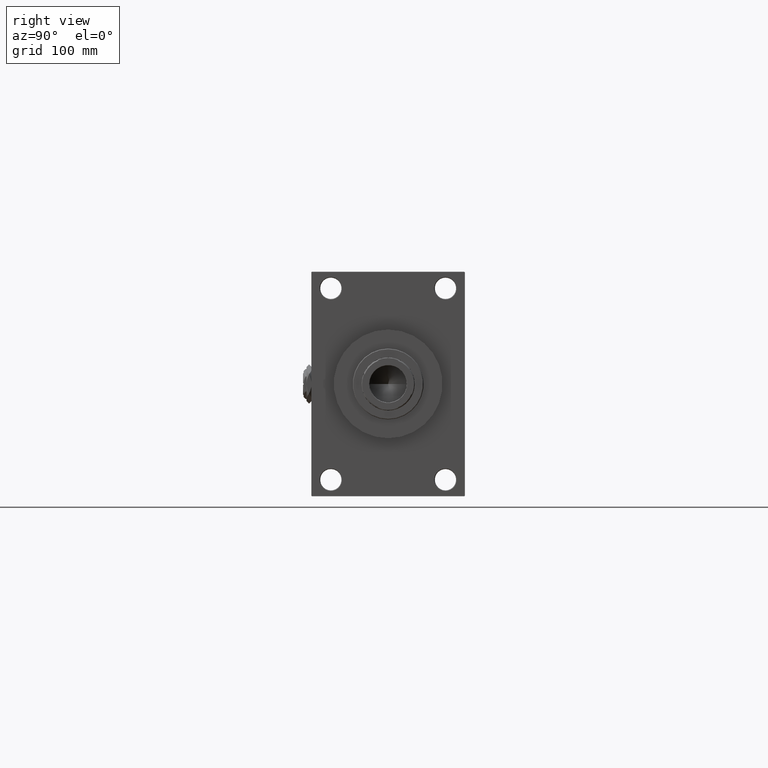
[diagram: clean part render]
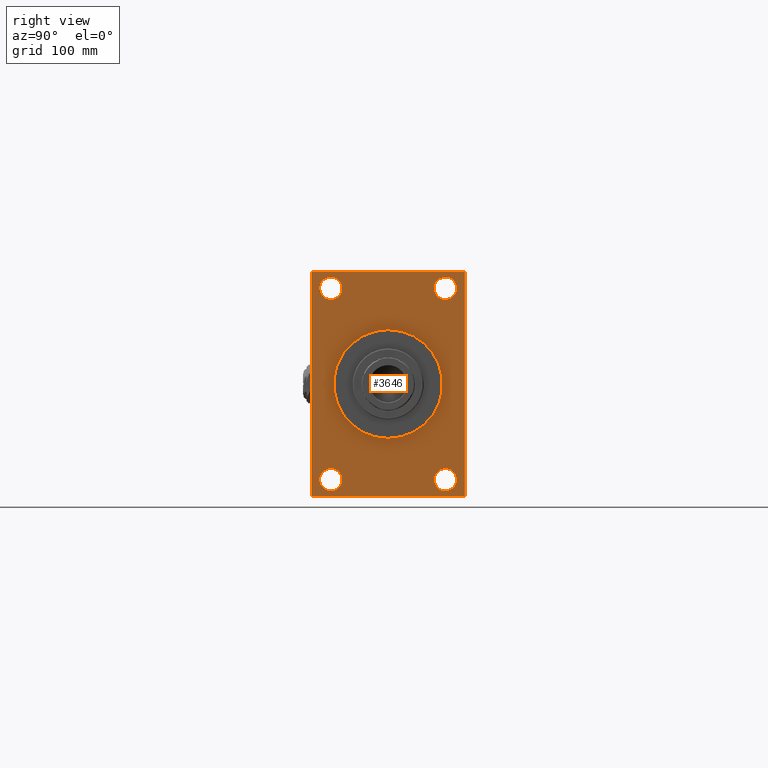
[diagram: same view with one face highlighted and labeled with its STEP entity id]
A machine part, right view. The second image highlights one B-rep face of the part: STEP entity #3646.
In plain terms, the highlighted planar face has unit normal (-1, 0, 0).
Its self-contained STEP definition (entity closure, byte-faithful):
#86 = CARTESIAN_POINT ( 'NONE',  ( 496.0000000000000000, -48.49999999999999289, -81.00000000000001421 ) ) ;
#265 = DIRECTION ( 'NONE',  ( -1.000000000000000000, 0.000000000000000000, -0.000000000000000000 ) ) ;
#358 = EDGE_CURVE ( 'NONE', #20938, #42780, #1046, .T. ) ;
#542 = LINE ( 'NONE', #22946, #36838 ) ;
#622 = CARTESIAN_POINT ( 'NONE',  ( 496.0000000000000000, -64.50000000000007105, -95.00000000000002842 ) ) ;
#705 = EDGE_CURVE ( 'NONE', #12452, #16959, #6179, .T. ) ;
#763 = EDGE_CURVE ( 'NONE', #16959, #30782, #34116, .T. ) ;
#1046 = CIRCLE ( 'NONE', #5063, 9.499999999999896971 ) ;
#1360 = DIRECTION ( 'NONE',  ( 0.000000000000000000, 0.7071067811865474617, -0.7071067811865474617 ) ) ;
#1659 = CARTESIAN_POINT ( 'NONE',  ( 496.0000000000000000, 64.99999999999997158, 94.99999999999997158 ) ) ;
#1685 = FACE_BOUND ( 'NONE', #29223, .T. ) ;
#2212 = CARTESIAN_POINT ( 'NONE',  ( 496.0000000000000000, -48.49999999999999289, -81.00000000000001421 ) ) ;
#2254 = VERTEX_POINT ( 'NONE', #24703 ) ;
#2329 = VERTEX_POINT ( 'NONE', #41585 ) ;
#2345 = CARTESIAN_POINT ( 'NONE',  ( 496.0000000000000000, 48.50000000000000711, -81.00000000000001421 ) ) ;
#2368 = VERTEX_POINT ( 'NONE', #11106 ) ;
#2667 = EDGE_CURVE ( 'NONE', #28242, #2329, #49799, .T. ) ;
#3153 = AXIS2_PLACEMENT_3D ( 'NONE', #4471, #34461, #42523 ) ;
#3229 = EDGE_CURVE ( 'NONE', #37912, #2368, #13231, .T. ) ;
#3646 = ADVANCED_FACE ( 'NONE', ( #1685, #16550, #12774, #9491, #39714, #28364 ), #48017, .F. ) ;
#3767 = DIRECTION ( 'NONE',  ( 1.000000000000000000, 0.000000000000000000, 0.000000000000000000 ) ) ;
#4471 = CARTESIAN_POINT ( 'NONE',  ( 496.0000000000000000, 0.000000000000000000, 0.000000000000000000 ) ) ;
#4807 = AXIS2_PLACEMENT_3D ( 'NONE', #14639, #42343, #7827 ) ;
#5063 = AXIS2_PLACEMENT_3D ( 'NONE', #2212, #25612, #25106 ) ;
#5280 = CIRCLE ( 'NONE', #40703, 9.499999999999896971 ) ;
#5951 = DIRECTION ( 'NONE',  ( -1.000000000000000000, 0.000000000000000000, -0.000000000000000000 ) ) ;
#6127 = CARTESIAN_POINT ( 'NONE',  ( 496.0000000000000000, -48.50000000000000000, 81.00000000000000000 ) ) ;
#6179 = LINE ( 'NONE', #1659, #13939 ) ;
#6306 = CARTESIAN_POINT ( 'NONE',  ( 496.0000000000000000, 48.50000000000000711, 81.00000000000000000 ) ) ;
#6325 = ORIENTED_EDGE ( 'NONE', *, *, #14792, .T. ) ;
#6874 = ORIENTED_EDGE ( 'NONE', *, *, #358, .T. ) ;
#7341 = ORIENTED_EDGE ( 'NONE', *, *, #705, .T. ) ;
#7592 = AXIS2_PLACEMENT_3D ( 'NONE', #86, #27013, #34572 ) ;
#7827 = DIRECTION ( 'NONE',  ( 0.000000000000000000, 0.000000000000000000, 1.000000000000000000 ) ) ;
#8042 = AXIS2_PLACEMENT_3D ( 'NONE', #6306, #17135, #29713 ) ;
#9043 = ORIENTED_EDGE ( 'NONE', *, *, #763, .T. ) ;
#9211 = CARTESIAN_POINT ( 'NONE',  ( 496.0000000000000000, -65.00000000000001421, -94.50000000000008527 ) ) ;
#9233 = CARTESIAN_POINT ( 'NONE',  ( 496.0000000000000000, 0.000000000000000000, 0.000000000000000000 ) ) ;
#9353 = ORIENTED_EDGE ( 'NONE', *, *, #3229, .T. ) ;
#9491 = FACE_BOUND ( 'NONE', #42022, .T. ) ;
#10085 = EDGE_CURVE ( 'NONE', #29763, #12452, #32074, .T. ) ;
#10670 = ORIENTED_EDGE ( 'NONE', *, *, #43203, .F. ) ;
#10747 = CIRCLE ( 'NONE', #16392, 9.499999999999896971 ) ;
#11106 = CARTESIAN_POINT ( 'NONE',  ( 496.0000000000000000, 48.50000000000000711, -90.49999999999991473 ) ) ;
#12150 = CARTESIAN_POINT ( 'NONE',  ( 496.0000000000000000, 48.50000000000000711, -71.50000000000011369 ) ) ;
#12176 = EDGE_CURVE ( 'NONE', #2368, #37912, #42405, .T. ) ;
#12345 = DIRECTION ( 'NONE',  ( 0.000000000000000000, 0.000000000000000000, 1.000000000000000000 ) ) ;
#12452 = VERTEX_POINT ( 'NONE', #42627 ) ;
#12774 = FACE_BOUND ( 'NONE', #41519, .T. ) ;
#13231 = CIRCLE ( 'NONE', #19653, 9.499999999999896971 ) ;
#13689 = DIRECTION ( 'NONE',  ( 0.000000000000000000, 0.000000000000000000, 1.000000000000000000 ) ) ;
#13939 = VECTOR ( 'NONE', #40433, 1000.000000000000000 ) ;
#14092 = CARTESIAN_POINT ( 'NONE',  ( 496.0000000000000000, 0.000000000000000000, 46.00000000000000000 ) ) ;
#14119 = VERTEX_POINT ( 'NONE', #29928 ) ;
#14424 = CARTESIAN_POINT ( 'NONE',  ( 496.0000000000000000, 48.50000000000000711, 71.50000000000009948 ) ) ;
#14639 = CARTESIAN_POINT ( 'NONE',  ( 496.0000000000000000, -48.50000000000000000, 81.00000000000000000 ) ) ;
#14792 = EDGE_CURVE ( 'NONE', #28242, #35000, #542, .T. ) ;
#14994 = LINE ( 'NONE', #622, #41740 ) ;
#15023 = ORIENTED_EDGE ( 'NONE', *, *, #24383, .T. ) ;
#15821 = CIRCLE ( 'NONE', #25470, 46.00000000000000000 ) ;
#16392 = AXIS2_PLACEMENT_3D ( 'NONE', #6127, #39891, #13689 ) ;
#16550 = FACE_BOUND ( 'NONE', #44625, .T. ) ;
#16639 = CARTESIAN_POINT ( 'NONE',  ( 496.0000000000000000, 64.99999999999997158, 94.50000000000002842 ) ) ;
#16959 = VERTEX_POINT ( 'NONE', #32187 ) ;
#17135 = DIRECTION ( 'NONE',  ( -1.000000000000000000, 0.000000000000000000, -0.000000000000000000 ) ) ;
#18251 = VERTEX_POINT ( 'NONE', #9211 ) ;
#19653 = AXIS2_PLACEMENT_3D ( 'NONE', #38778, #265, #43063 ) ;
#19907 = CARTESIAN_POINT ( 'NONE',  ( 496.0000000000000000, 48.50000000000000711, 81.00000000000000000 ) ) ;
#20938 = VERTEX_POINT ( 'NONE', #46245 ) ;
#21378 = VECTOR ( 'NONE', #28540, 1000.000000000000114 ) ;
#21473 = DIRECTION ( 'NONE',  ( -1.000000000000000000, 0.000000000000000000, -0.000000000000000000 ) ) ;
#22002 = ORIENTED_EDGE ( 'NONE', *, *, #33942, .F. ) ;
#22396 = CARTESIAN_POINT ( 'NONE',  ( 496.0000000000000000, 64.99999999999997158, 94.99999999999997158 ) ) ;
#22536 = CARTESIAN_POINT ( 'NONE',  ( 496.0000000000000000, -65.00000000000001421, 94.50000000000002842 ) ) ;
#22946 = CARTESIAN_POINT ( 'NONE',  ( 496.0000000000000000, 64.99999999999998579, -94.50000000000008527 ) ) ;
#23352 = VECTOR ( 'NONE', #46837, 1000.000000000000000 ) ;
#23650 = VERTEX_POINT ( 'NONE', #14424 ) ;
#24024 = CARTESIAN_POINT ( 'NONE',  ( 496.0000000000000000, 64.50000000000002842, 94.99999999999997158 ) ) ;
#24383 = EDGE_CURVE ( 'NONE', #26070, #14119, #10747, .T. ) ;
#24703 = CARTESIAN_POINT ( 'NONE',  ( 496.0000000000000000, 48.50000000000000711, 90.49999999999990052 ) ) ;
#24837 = ORIENTED_EDGE ( 'NONE', *, *, #41470, .T. ) ;
#25106 = DIRECTION ( 'NONE',  ( 0.000000000000000000, 0.000000000000000000, 1.000000000000000000 ) ) ;
#25207 = ORIENTED_EDGE ( 'NONE', *, *, #39026, .T. ) ;
#25470 = AXIS2_PLACEMENT_3D ( 'NONE', #33751, #3767, #42049 ) ;
#25612 = DIRECTION ( 'NONE',  ( -1.000000000000000000, 0.000000000000000000, -0.000000000000000000 ) ) ;
#25628 = EDGE_LOOP ( 'NONE', ( #34759, #25207, #37309, #6325, #42654, #47902, #7341, #9043 ) ) ;
#26070 = VERTEX_POINT ( 'NONE', #43754 ) ;
#27013 = DIRECTION ( 'NONE',  ( -1.000000000000000000, 0.000000000000000000, -0.000000000000000000 ) ) ;
#27119 = CARTESIAN_POINT ( 'NONE',  ( 496.0000000000000000, 64.99999999999998579, -94.50000000000008527 ) ) ;
#27817 = VECTOR ( 'NONE', #29934, 1000.000000000000000 ) ;
#28169 = CIRCLE ( 'NONE', #3153, 46.00000000000000000 ) ;
#28242 = VERTEX_POINT ( 'NONE', #44559 ) ;
#28364 = FACE_OUTER_BOUND ( 'NONE', #25628, .T. ) ;
#28540 = DIRECTION ( 'NONE',  ( 0.000000000000000000, -0.7071067811865474617, 0.7071067811865474617 ) ) ;
#29129 = EDGE_CURVE ( 'NONE', #29763, #35000, #44079, .T. ) ;
#29180 = VERTEX_POINT ( 'NONE', #14092 ) ;
#29223 = EDGE_LOOP ( 'NONE', ( #24837, #15023 ) ) ;
#29280 = CIRCLE ( 'NONE', #7592, 9.499999999999896971 ) ;
#29713 = DIRECTION ( 'NONE',  ( 0.000000000000000000, 0.000000000000000000, 1.000000000000000000 ) ) ;
#29763 = VERTEX_POINT ( 'NONE', #16639 ) ;
#29928 = CARTESIAN_POINT ( 'NONE',  ( 496.0000000000000000, -48.50000000000000000, 71.50000000000009948 ) ) ;
#29934 = DIRECTION ( 'NONE',  ( 0.000000000000000000, 7.304098846218135653E-17, -1.000000000000000000 ) ) ;
#30651 = CARTESIAN_POINT ( 'NONE',  ( 496.0000000000000000, 64.99999999999998579, -95.00000000000001421 ) ) ;
#30782 = VERTEX_POINT ( 'NONE', #38727 ) ;
#31463 = CARTESIAN_POINT ( 'NONE',  ( 496.0000000000000000, -65.00000000000001421, 94.99999999999997158 ) ) ;
#31916 = AXIS2_PLACEMENT_3D ( 'NONE', #2345, #21473, #44395 ) ;
#32074 = LINE ( 'NONE', #24024, #21378 ) ;
#32187 = CARTESIAN_POINT ( 'NONE',  ( 496.0000000000000000, -64.50000000000008527, 94.99999999999997158 ) ) ;
#32238 = DIRECTION ( 'NONE',  ( -1.000000000000000000, 0.000000000000000000, -0.000000000000000000 ) ) ;
#32351 = EDGE_CURVE ( 'NONE', #2254, #23650, #5280, .T. ) ;
#33751 = CARTESIAN_POINT ( 'NONE',  ( 496.0000000000000000, 0.000000000000000000, 0.000000000000000000 ) ) ;
#33844 = ORIENTED_EDGE ( 'NONE', *, *, #32351, .T. ) ;
#33942 = EDGE_CURVE ( 'NONE', #29180, #38817, #15821, .T. ) ;
#34116 = LINE ( 'NONE', #22536, #41317 ) ;
#34461 = DIRECTION ( 'NONE',  ( 1.000000000000000000, 0.000000000000000000, 0.000000000000000000 ) ) ;
#34572 = DIRECTION ( 'NONE',  ( 0.000000000000000000, 0.000000000000000000, 1.000000000000000000 ) ) ;
#34582 = CIRCLE ( 'NONE', #4807, 9.499999999999896971 ) ;
#34759 = ORIENTED_EDGE ( 'NONE', *, *, #42911, .T. ) ;
#34928 = DIRECTION ( 'NONE',  ( 0.000000000000000000, -1.000000000000000000, -1.067522139062650425E-16 ) ) ;
#35000 = VERTEX_POINT ( 'NONE', #27119 ) ;
#35253 = LINE ( 'NONE', #31463, #23352 ) ;
#36053 = ORIENTED_EDGE ( 'NONE', *, *, #44518, .T. ) ;
#36838 = VECTOR ( 'NONE', #42355, 999.9999999999998863 ) ;
#37268 = CARTESIAN_POINT ( 'NONE',  ( 496.0000000000000000, 5.633375276077824704E-15, -46.00000000000000000 ) ) ;
#37279 = ORIENTED_EDGE ( 'NONE', *, *, #48387, .T. ) ;
#37309 = ORIENTED_EDGE ( 'NONE', *, *, #2667, .F. ) ;
#37912 = VERTEX_POINT ( 'NONE', #12150 ) ;
#38727 = CARTESIAN_POINT ( 'NONE',  ( 496.0000000000000000, -65.00000000000001421, 94.50000000000002842 ) ) ;
#38778 = CARTESIAN_POINT ( 'NONE',  ( 496.0000000000000000, 48.50000000000000711, -81.00000000000001421 ) ) ;
#38817 = VERTEX_POINT ( 'NONE', #37268 ) ;
#39026 = EDGE_CURVE ( 'NONE', #18251, #2329, #14994, .T. ) ;
#39568 = ORIENTED_EDGE ( 'NONE', *, *, #12176, .T. ) ;
#39714 = FACE_BOUND ( 'NONE', #41428, .T. ) ;
#39891 = DIRECTION ( 'NONE',  ( -1.000000000000000000, 0.000000000000000000, -0.000000000000000000 ) ) ;
#40433 = DIRECTION ( 'NONE',  ( 0.000000000000000000, -1.000000000000000000, 0.000000000000000000 ) ) ;
#40462 = DIRECTION ( 'NONE',  ( -0.000000000000000000, 0.000000000000000000, 1.000000000000000000 ) ) ;
#40703 = AXIS2_PLACEMENT_3D ( 'NONE', #19907, #32238, #12345 ) ;
#41317 = VECTOR ( 'NONE', #48984, 999.9999999999998863 ) ;
#41428 = EDGE_LOOP ( 'NONE', ( #22002, #10670 ) ) ;
#41470 = EDGE_CURVE ( 'NONE', #14119, #26070, #34582, .T. ) ;
#41519 = EDGE_LOOP ( 'NONE', ( #39568, #9353 ) ) ;
#41585 = CARTESIAN_POINT ( 'NONE',  ( 496.0000000000000000, -64.50000000000007105, -95.00000000000002842 ) ) ;
#41740 = VECTOR ( 'NONE', #1360, 1000.000000000000114 ) ;
#42022 = EDGE_LOOP ( 'NONE', ( #36053, #33844 ) ) ;
#42049 = DIRECTION ( 'NONE',  ( 0.000000000000000000, 0.000000000000000000, -1.000000000000000000 ) ) ;
#42343 = DIRECTION ( 'NONE',  ( -1.000000000000000000, 0.000000000000000000, -0.000000000000000000 ) ) ;
#42355 = DIRECTION ( 'NONE',  ( -0.000000000000000000, 0.7071067811865574537, 0.7071067811865376918 ) ) ;
#42405 = CIRCLE ( 'NONE', #31916, 9.499999999999896971 ) ;
#42523 = DIRECTION ( 'NONE',  ( 0.000000000000000000, 0.000000000000000000, -1.000000000000000000 ) ) ;
#42627 = CARTESIAN_POINT ( 'NONE',  ( 496.0000000000000000, 64.50000000000002842, 94.99999999999997158 ) ) ;
#42654 = ORIENTED_EDGE ( 'NONE', *, *, #29129, .F. ) ;
#42780 = VERTEX_POINT ( 'NONE', #49383 ) ;
#42911 = EDGE_CURVE ( 'NONE', #30782, #18251, #35253, .T. ) ;
#43063 = DIRECTION ( 'NONE',  ( 0.000000000000000000, 0.000000000000000000, 1.000000000000000000 ) ) ;
#43203 = EDGE_CURVE ( 'NONE', #38817, #29180, #28169, .T. ) ;
#43754 = CARTESIAN_POINT ( 'NONE',  ( 496.0000000000000000, -48.50000000000000000, 90.49999999999990052 ) ) ;
#44079 = LINE ( 'NONE', #22396, #27817 ) ;
#44395 = DIRECTION ( 'NONE',  ( 0.000000000000000000, 0.000000000000000000, 1.000000000000000000 ) ) ;
#44518 = EDGE_CURVE ( 'NONE', #23650, #2254, #46623, .T. ) ;
#44545 = VECTOR ( 'NONE', #34928, 1000.000000000000000 ) ;
#44559 = CARTESIAN_POINT ( 'NONE',  ( 496.0000000000000000, 64.50000000000004263, -95.00000000000001421 ) ) ;
#44625 = EDGE_LOOP ( 'NONE', ( #6874, #37279 ) ) ;
#46245 = CARTESIAN_POINT ( 'NONE',  ( 496.0000000000000000, -48.49999999999999289, -90.49999999999991473 ) ) ;
#46623 = CIRCLE ( 'NONE', #8042, 9.499999999999896971 ) ;
#46837 = DIRECTION ( 'NONE',  ( 0.000000000000000000, 0.000000000000000000, -1.000000000000000000 ) ) ;
#47902 = ORIENTED_EDGE ( 'NONE', *, *, #10085, .T. ) ;
#48017 = PLANE ( 'NONE',  #49435 ) ;
#48387 = EDGE_CURVE ( 'NONE', #42780, #20938, #29280, .T. ) ;
#48984 = DIRECTION ( 'NONE',  ( -0.000000000000000000, -0.7071067811865376918, -0.7071067811865574537 ) ) ;
#49383 = CARTESIAN_POINT ( 'NONE',  ( 496.0000000000000000, -48.49999999999999289, -71.50000000000011369 ) ) ;
#49435 = AXIS2_PLACEMENT_3D ( 'NONE', #9233, #5951, #40462 ) ;
#49799 = LINE ( 'NONE', #30651, #44545 ) ;